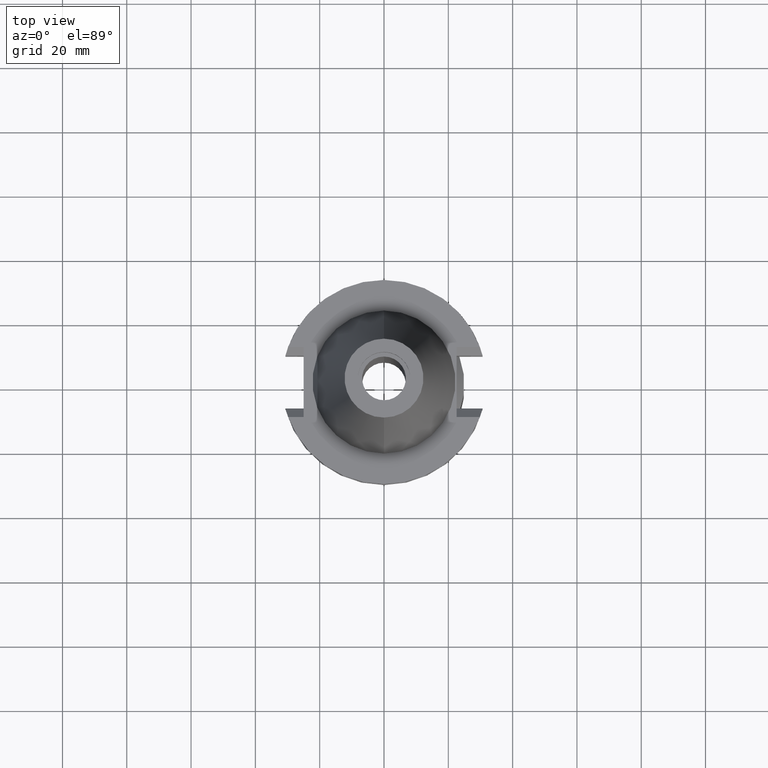
[diagram: clean part render]
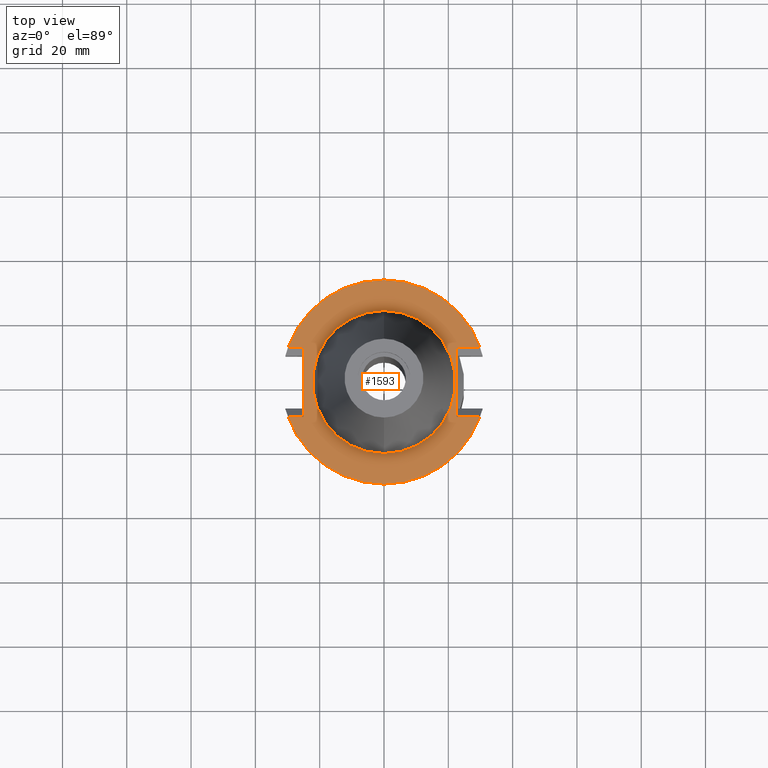
[diagram: same view with one face highlighted and labeled with its STEP entity id]
A machine part, top view. The second image highlights one B-rep face of the part: STEP entity #1593.
In plain terms, the highlighted planar face has unit normal (0, 0, -1).
Its self-contained STEP definition (entity closure, byte-faithful):
#94=DIRECTION('',(0.E0,-1.E0,0.E0));
#95=VECTOR('',#94,2.178E1);
#96=CARTESIAN_POINT('',(2.257E1,1.089E1,-1.E0));
#97=LINE('',#96,#95);
#101=DIRECTION('',(1.E0,5.877118954908E-14,0.E0));
#102=VECTOR('',#101,7.253990343347E0);
#103=CARTESIAN_POINT('',(2.257E1,-1.089E1,-1.E0));
#104=LINE('',#103,#102);
#108=CARTESIAN_POINT('',(0.E0,2.188841840286E-14,-1.E0));
#109=DIRECTION('',(0.E0,0.E0,-1.E0));
#110=DIRECTION('',(9.393382785306E-1,-3.429921259843E-1,0.E0));
#111=AXIS2_PLACEMENT_3D('',#108,#109,#110);
#116=CARTESIAN_POINT('',(0.E0,2.188841840286E-14,-1.E0));
#117=DIRECTION('',(0.E0,0.E0,-1.E0));
#118=DIRECTION('',(0.E0,-1.E0,0.E0));
#119=AXIS2_PLACEMENT_3D('',#116,#117,#118);
#124=DIRECTION('',(-1.E0,-8.727782216946E-14,0.E0));
#125=VECTOR('',#124,4.843990343348E0);
#126=CARTESIAN_POINT('',(-2.498E1,1.089E1,-1.E0));
#127=LINE('',#126,#125);
#131=CARTESIAN_POINT('',(0.E0,2.188841840286E-14,-1.E0));
#132=DIRECTION('',(0.E0,0.E0,-1.E0));
#133=DIRECTION('',(-9.393382785306E-1,3.429921259843E-1,0.E0));
#134=AXIS2_PLACEMENT_3D('',#131,#132,#133);
#139=CARTESIAN_POINT('',(0.E0,2.188841840286E-14,-1.E0));
#140=DIRECTION('',(0.E0,0.E0,-1.E0));
#141=DIRECTION('',(0.E0,1.E0,0.E0));
#142=AXIS2_PLACEMENT_3D('',#139,#140,#141);
#147=CARTESIAN_POINT('',(0.E0,2.188841840286E-14,-1.E0));
#148=DIRECTION('',(0.E0,0.E0,1.E0));
#149=DIRECTION('',(0.E0,-1.E0,0.E0));
#150=AXIS2_PLACEMENT_3D('',#147,#148,#149);
#155=CARTESIAN_POINT('',(0.E0,2.188841840286E-14,-1.E0));
#156=DIRECTION('',(0.E0,0.E0,1.E0));
#157=DIRECTION('',(0.E0,1.E0,0.E0));
#158=AXIS2_PLACEMENT_3D('',#155,#156,#157);
#291=DIRECTION('',(1.E0,-5.779166972326E-14,0.E0));
#292=VECTOR('',#291,7.253990343348E0);
#293=CARTESIAN_POINT('',(2.257E1,1.089E1,-1.E0));
#294=LINE('',#293,#292);
#308=CARTESIAN_POINT('',(2.982399034335E1,1.089E1,-1.000000000001E0));
#335=DIRECTION('',(0.E0,-1.E0,0.E0));
#336=VECTOR('',#335,2.178E1);
#337=CARTESIAN_POINT('',(-2.498E1,1.089E1,-1.E0));
#338=LINE('',#337,#336);
#561=DIRECTION('',(-1.E0,8.727782216946E-14,0.E0));
#562=VECTOR('',#561,4.843990343348E0);
#563=CARTESIAN_POINT('',(-2.498E1,-1.089E1,-1.E0));
#564=LINE('',#563,#562);
#575=CARTESIAN_POINT('',(2.982399034335E1,-1.089E1,-1.000000000001E0));
#600=CARTESIAN_POINT('',(-2.982399034335E1,-1.089E1,-1.000000000001E0));
#1376=CARTESIAN_POINT('',(2.257E1,-1.089E1,-1.E0));
#1377=VERTEX_POINT('',#1376);
#1378=CARTESIAN_POINT('',(2.257E1,1.089E1,-1.E0));
#1379=VERTEX_POINT('',#1378);
#1419=CARTESIAN_POINT('',(-2.498E1,1.089E1,-1.E0));
#1420=VERTEX_POINT('',#1419);
#1421=CARTESIAN_POINT('',(-2.498E1,-1.089E1,-1.E0));
#1422=VERTEX_POINT('',#1421);
#1465=VERTEX_POINT('',#575);
#1466=VERTEX_POINT('',#600);
#1467=CARTESIAN_POINT('',(-1.432899828923E-14,-3.175E1,-1.E0));
#1468=VERTEX_POINT('',#1467);
#1471=VERTEX_POINT('',#308);
#1472=CARTESIAN_POINT('',(0.E0,3.175E1,-1.E0));
#1473=VERTEX_POINT('',#1472);
#1474=CARTESIAN_POINT('',(-2.982399034335E1,1.089E1,-1.E0));
#1475=VERTEX_POINT('',#1474);
#1476=CARTESIAN_POINT('',(0.E0,-2.2225E1,-1.E0));
#1477=CARTESIAN_POINT('',(0.E0,2.2225E1,-1.E0));
#1478=VERTEX_POINT('',#1476);
#1479=VERTEX_POINT('',#1477);
#1562=CARTESIAN_POINT('',(0.E0,1.212400331156E-14,-1.E0));
#1563=DIRECTION('',(0.E0,0.E0,-1.E0));
#1564=DIRECTION('',(0.E0,-1.E0,0.E0));
#1565=AXIS2_PLACEMENT_3D('',#1562,#1563,#1564);
#1566=PLANE('',#1565);
#1568=ORIENTED_EDGE('',*,*,#1567,.T.);
#1570=ORIENTED_EDGE('',*,*,#1569,.T.);
#1572=ORIENTED_EDGE('',*,*,#1571,.T.);
#1574=ORIENTED_EDGE('',*,*,#1573,.T.);
#1576=ORIENTED_EDGE('',*,*,#1575,.F.);
#1578=ORIENTED_EDGE('',*,*,#1577,.F.);
#1580=ORIENTED_EDGE('',*,*,#1579,.T.);
#1582=ORIENTED_EDGE('',*,*,#1581,.T.);
#1584=ORIENTED_EDGE('',*,*,#1583,.T.);
#1586=ORIENTED_EDGE('',*,*,#1585,.F.);
#1587=EDGE_LOOP('',(#1568,#1570,#1572,#1574,#1576,#1578,#1580,#1582,#1584,
#1586));
#1588=FACE_OUTER_BOUND('',#1587,.F.);
#1589=ORIENTED_EDGE('',*,*,#1541,.T.);
#1590=ORIENTED_EDGE('',*,*,#1557,.T.);
#1591=EDGE_LOOP('',(#1589,#1590));
#1592=FACE_BOUND('',#1591,.F.);
#112=CIRCLE('',#111,3.175E1);
#120=CIRCLE('',#119,3.175E1);
#135=CIRCLE('',#134,3.175E1);
#143=CIRCLE('',#142,3.175E1);
#151=CIRCLE('',#150,2.2225E1);
#159=CIRCLE('',#158,2.2225E1);
#1541=EDGE_CURVE('',#1478,#1479,#151,.T.);
#1557=EDGE_CURVE('',#1479,#1478,#159,.T.);
#1567=EDGE_CURVE('',#1379,#1377,#97,.T.);
#1569=EDGE_CURVE('',#1377,#1465,#104,.T.);
#1571=EDGE_CURVE('',#1465,#1468,#112,.T.);
#1573=EDGE_CURVE('',#1468,#1466,#120,.T.);
#1575=EDGE_CURVE('',#1422,#1466,#564,.T.);
#1577=EDGE_CURVE('',#1420,#1422,#338,.T.);
#1579=EDGE_CURVE('',#1420,#1475,#127,.T.);
#1581=EDGE_CURVE('',#1475,#1473,#135,.T.);
#1583=EDGE_CURVE('',#1473,#1471,#143,.T.);
#1585=EDGE_CURVE('',#1379,#1471,#294,.T.);
#1593=ADVANCED_FACE('',(#1588,#1592),#1566,.F.);